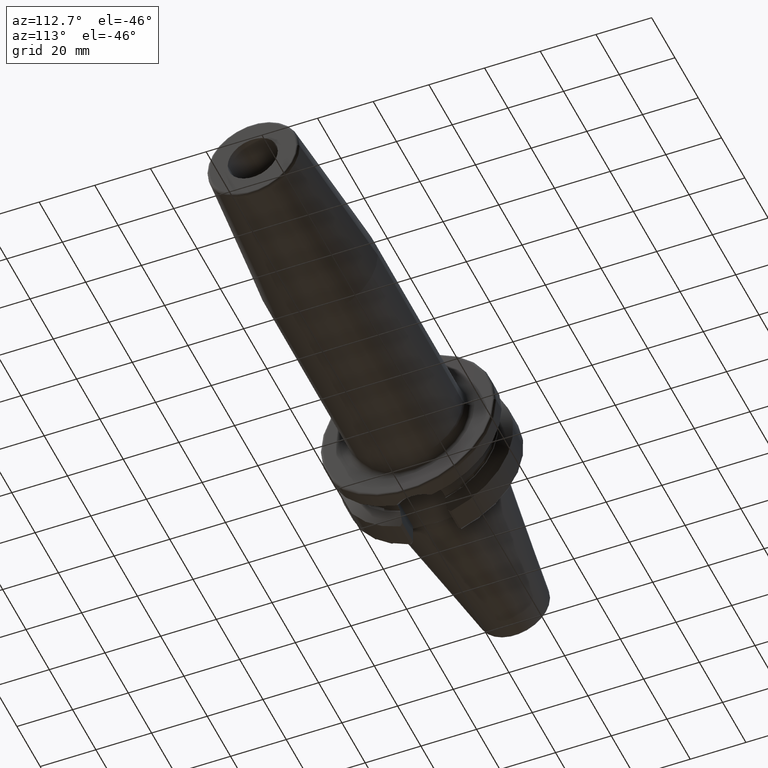
[diagram: clean part render]
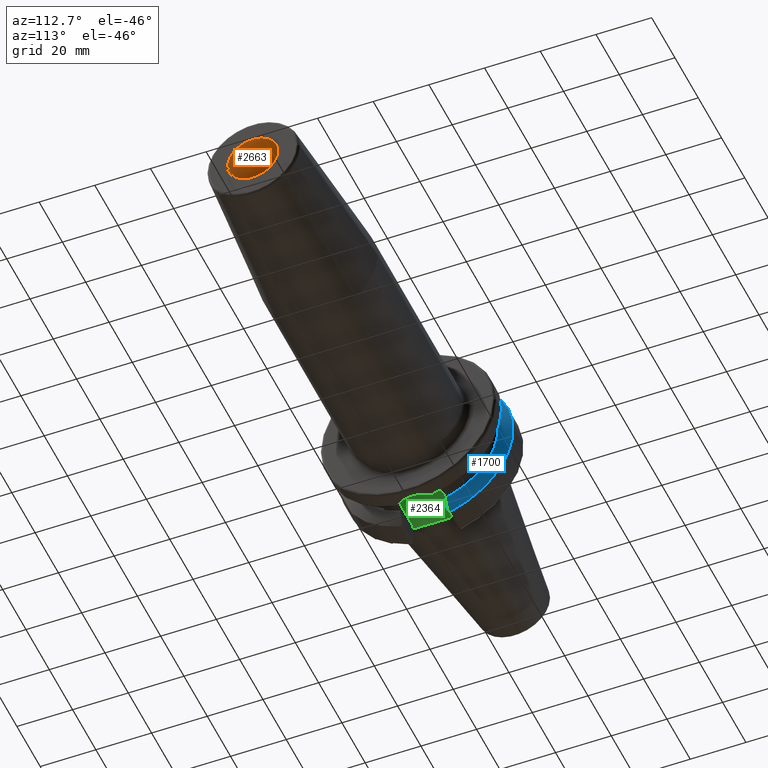
[diagram: same view with three faces highlighted in distinct colors, each labeled with its STEP entity id]
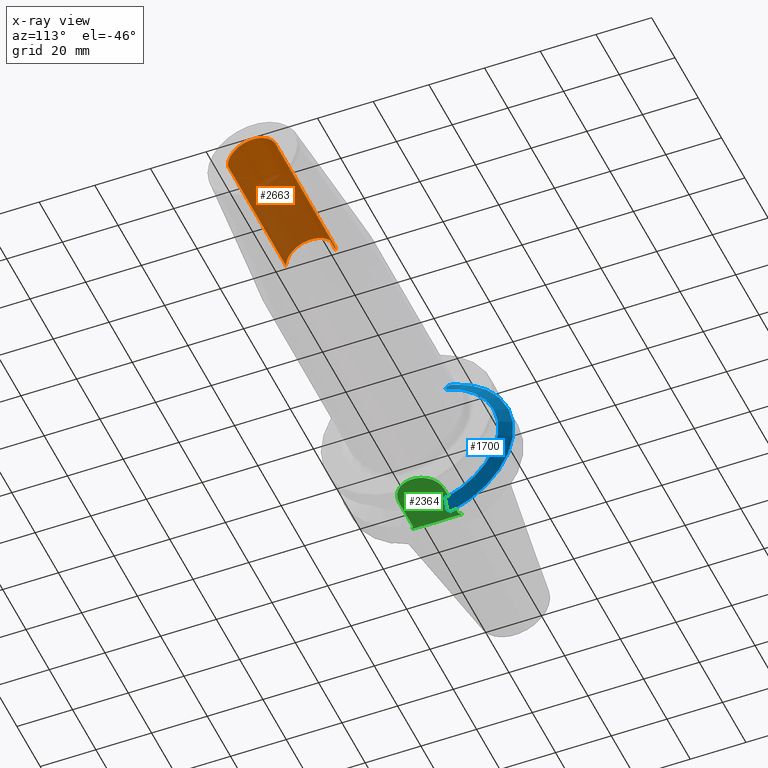
[diagram: x-ray of the same camera — body ghosted, the three highlighted faces saturated]
A machine part, auxiliary view with three faces highlighted in distinct colors.
The next image is the same camera in x-ray (body ghosted, the three faces saturated) — at least one of them is partly hidden behind the body in this view.
Their STEP definitions:

[orange] entity #2663 — the highlighted cylindrical surface (edge-blend (fillet) strip) has radius 9 mm, axis along (1, 0, 0).
#922=CARTESIAN_POINT('',(1.6E2,0.E0,0.E0));
#923=DIRECTION('',(1.E0,0.E0,0.E0));
#924=DIRECTION('',(0.E0,1.E0,0.E0));
#925=AXIS2_PLACEMENT_3D('',#922,#923,#924);
#932=DIRECTION('',(-1.E0,0.E0,0.E0));
#933=VECTOR('',#932,5.E1);
#934=CARTESIAN_POINT('',(1.6E2,9.E0,0.E0));
#935=LINE('',#934,#933);
#936=DIRECTION('',(-1.E0,0.E0,0.E0));
#937=VECTOR('',#936,5.E1);
#938=CARTESIAN_POINT('',(1.6E2,-9.E0,0.E0));
#939=LINE('',#938,#937);
#945=CARTESIAN_POINT('',(1.1E2,0.E0,0.E0));
#946=DIRECTION('',(1.E0,0.E0,0.E0));
#947=DIRECTION('',(0.E0,1.E0,0.E0));
#948=AXIS2_PLACEMENT_3D('',#945,#946,#947);
#1393=CARTESIAN_POINT('',(1.1E2,9.E0,0.E0));
#1394=CARTESIAN_POINT('',(1.1E2,-9.E0,0.E0));
#1395=VERTEX_POINT('',#1393);
#1396=VERTEX_POINT('',#1394);
#1397=CARTESIAN_POINT('',(1.6E2,9.E0,0.E0));
#1398=VERTEX_POINT('',#1397);
#1399=CARTESIAN_POINT('',(1.6E2,-9.E0,0.E0));
#1400=VERTEX_POINT('',#1399);
#2649=CARTESIAN_POINT('',(1.075E2,0.E0,0.E0));
#2650=DIRECTION('',(1.E0,0.E0,0.E0));
#2651=DIRECTION('',(0.E0,-1.E0,0.E0));
#2652=AXIS2_PLACEMENT_3D('',#2649,#2650,#2651);
#2653=CYLINDRICAL_SURFACE('',#2652,9.E0);
#2655=ORIENTED_EDGE('',*,*,#2654,.T.);
#2657=ORIENTED_EDGE('',*,*,#2656,.T.);
#2659=ORIENTED_EDGE('',*,*,#2658,.F.);
#2660=ORIENTED_EDGE('',*,*,#2642,.F.);
#2661=EDGE_LOOP('',(#2655,#2657,#2659,#2660));
#2662=FACE_OUTER_BOUND('',#2661,.F.);
#2663=ADVANCED_FACE('',(#2662),#2653,.F.);
#926=CIRCLE('',#925,9.E0);
#949=CIRCLE('',#948,9.E0);
#2642=EDGE_CURVE('',#1398,#1400,#926,.T.);
#2654=EDGE_CURVE('',#1398,#1395,#935,.T.);
#2656=EDGE_CURVE('',#1395,#1396,#949,.T.);
#2658=EDGE_CURVE('',#1400,#1396,#939,.T.);

[blue] entity #1700 — the highlighted conical surface has half-angle 60 deg.
#155=CARTESIAN_POINT('',(1.212089730171E1,8.095E0,-2.944558475789E1));
#156=CARTESIAN_POINT('',(1.234623272522E1,8.095E0,-2.904081227564E1));
#157=CARTESIAN_POINT('',(1.279052069613E1,8.095E0,-2.824155997645E1));
#158=CARTESIAN_POINT('',(1.343761208926E1,8.095E0,-2.707376738597E1));
#159=CARTESIAN_POINT('',(1.385633764716E1,8.095E0,-2.631545873157E1));
#160=CARTESIAN_POINT('',(1.40625E1,8.095E0,-2.594139336151E1));
#200=CARTESIAN_POINT('',(1.40625E1,0.E0,0.E0));
#201=DIRECTION('',(1.E0,0.E0,0.E0));
#202=DIRECTION('',(0.E0,2.978832194960E-1,-9.546023190537E-1));
#203=AXIS2_PLACEMENT_3D('',#200,#201,#202);
#237=CARTESIAN_POINT('',(1.157272253103E1,0.E0,0.E0));
#238=DIRECTION('',(1.E0,0.E0,0.E0));
#239=DIRECTION('',(0.E0,2.875039130802E-1,-9.577794631143E-1));
#240=AXIS2_PLACEMENT_3D('',#237,#238,#239);
#622=CARTESIAN_POINT('',(1.212089730171E1,8.095E0,-2.944558475789E1));
#623=CARTESIAN_POINT('',(1.203210735485E1,8.251548423090E0,-2.956204177452E1));
#624=CARTESIAN_POINT('',(1.185196062668E1,8.567728822292E0,-2.979724967558E1));
#625=CARTESIAN_POINT('',(1.166666286204E1,8.890070036919E0,-3.003704063260E1));
#626=CARTESIAN_POINT('',(1.157272253103E1,9.052779463114E0,-3.015808084481E1));
#632=CARTESIAN_POINT('',(1.157272253103E1,9.393318983190E0,3.005375541808E1));
#633=CARTESIAN_POINT('',(1.170089151867E1,9.171323784651E0,2.989055444592E1));
#634=CARTESIAN_POINT('',(1.195252831620E1,8.732937755222E0,2.956827258282E1));
#635=CARTESIAN_POINT('',(1.219479613906E1,8.305773148711E0,2.925424020953E1));
#636=CARTESIAN_POINT('',(1.231359829731E1,8.095E0,2.909928918805E1));
#673=CARTESIAN_POINT('',(1.40625E1,8.095E0,2.594139336151E1));
#674=CARTESIAN_POINT('',(1.387619304722E1,8.095E0,2.627943267022E1));
#675=CARTESIAN_POINT('',(1.349822147379E1,8.095E0,2.696405968402E1));
#676=CARTESIAN_POINT('',(1.291532431893E1,8.095E0,2.801651320770E1));
#677=CARTESIAN_POINT('',(1.251595456147E1,8.095E0,2.873548878206E1));
#678=CARTESIAN_POINT('',(1.231359829731E1,8.095E0,2.909928918805E1));
#1218=CARTESIAN_POINT('',(1.40625E1,8.095E0,-2.594139336151E1));
#1219=CARTESIAN_POINT('',(1.40625E1,8.095E0,2.594139336151E1));
#1220=VERTEX_POINT('',#1218);
#1221=VERTEX_POINT('',#1219);
#1326=VERTEX_POINT('',#678);
#1334=VERTEX_POINT('',#155);
#1344=CARTESIAN_POINT('',(1.157272253103E1,9.052779463114E0,-3.015808084481E1));
#1345=CARTESIAN_POINT('',(1.157272253103E1,9.393318983190E0,3.005375541808E1));
#1346=VERTEX_POINT('',#1344);
#1347=VERTEX_POINT('',#1345);
#1683=CARTESIAN_POINT('',(1.281761126552E1,0.E0,0.E0));
#1684=DIRECTION('',(-1.E0,0.E0,0.E0));
#1685=DIRECTION('',(0.E0,1.E0,0.E0));
#1686=AXIS2_PLACEMENT_3D('',#1683,#1684,#1685);
#1687=CONICAL_SURFACE('',#1686,2.933128946210E1,6.E1);
#1689=ORIENTED_EDGE('',*,*,#1688,.F.);
#1691=ORIENTED_EDGE('',*,*,#1690,.F.);
#1692=ORIENTED_EDGE('',*,*,#1634,.T.);
#1693=ORIENTED_EDGE('',*,*,#1657,.T.);
#1695=ORIENTED_EDGE('',*,*,#1694,.T.);
#1697=ORIENTED_EDGE('',*,*,#1696,.F.);
#1698=EDGE_LOOP('',(#1689,#1691,#1692,#1693,#1695,#1697));
#1699=FACE_OUTER_BOUND('',#1698,.F.);
#1700=ADVANCED_FACE('',(#1699),#1687,.T.);
#161=B_SPLINE_CURVE_WITH_KNOTS('',3,(#155,#156,#157,#158,#159,#160),
.UNSPECIFIED.,.F.,.F.,(4,1,1,4),(0.E0,3.333333333333E-1,6.666666666667E-1,1.E0),
.UNSPECIFIED.);
#204=CIRCLE('',#203,2.717507892421E1);
#241=CIRCLE('',#240,3.14875E1);
#627=B_SPLINE_CURVE_WITH_KNOTS('',3,(#622,#623,#624,#625,#626),.UNSPECIFIED.,
.F.,.F.,(4,1,4),(0.E0,5.E-1,1.E0),.UNSPECIFIED.);
#637=B_SPLINE_CURVE_WITH_KNOTS('',3,(#632,#633,#634,#635,#636),.UNSPECIFIED.,
.F.,.F.,(4,1,4),(0.E0,5.E-1,1.E0),.UNSPECIFIED.);
#679=B_SPLINE_CURVE_WITH_KNOTS('',3,(#673,#674,#675,#676,#677,#678),
.UNSPECIFIED.,.F.,.F.,(4,1,1,4),(0.E0,3.333333333333E-1,6.666666666667E-1,1.E0),
.UNSPECIFIED.);
#1634=EDGE_CURVE('',#1334,#1220,#161,.T.);
#1657=EDGE_CURVE('',#1220,#1221,#204,.T.);
#1688=EDGE_CURVE('',#1346,#1347,#241,.T.);
#1690=EDGE_CURVE('',#1334,#1346,#627,.T.);
#1694=EDGE_CURVE('',#1221,#1326,#679,.T.);
#1696=EDGE_CURVE('',#1347,#1326,#637,.T.);

[green] entity #2364 — the highlighted planar face has unit normal (0, 0, 1).
#116=CARTESIAN_POINT('',(2.E0,4.388977671395E0,-2.245E1));
#117=CARTESIAN_POINT('',(2.E0,3.970864393606E0,-2.245E1));
#118=CARTESIAN_POINT('',(1.981114905491E0,3.134790252882E0,-2.245E1));
#119=CARTESIAN_POINT('',(1.935909306664E0,1.881114481695E0,-2.245E1));
#120=CARTESIAN_POINT('',(1.903922826087E0,6.271978198695E-1,-2.245E1));
#121=CARTESIAN_POINT('',(1.903921553157E0,-6.271174199701E-1,-2.245E1));
#122=CARTESIAN_POINT('',(1.935907277484E0,-1.881058975901E0,-2.245E1));
#123=CARTESIAN_POINT('',(1.981114329553E0,-3.134769380598E0,-2.245E1));
#124=CARTESIAN_POINT('',(2.E0,-3.970858027266E0,-2.245E1));
#125=CARTESIAN_POINT('',(2.E0,-4.388977671395E0,-2.245E1));
#147=DIRECTION('',(7.071067811865E-1,-7.071067811865E-1,0.E0));
#148=VECTOR('',#147,1.414213562373E0);
#149=CARTESIAN_POINT('',(2.E0,9.095E0,-2.245E1));
#150=LINE('',#149,#148);
#738=DIRECTION('',(-7.071067811865E-1,-7.071067811865E-1,0.E0));
#739=VECTOR('',#738,1.414213562373E0);
#740=CARTESIAN_POINT('',(3.E0,-8.095E0,-2.245E1));
#741=LINE('',#740,#739);
#742=DIRECTION('',(-1.E0,0.E0,0.E0));
#743=VECTOR('',#742,1.2155E1);
#744=CARTESIAN_POINT('',(1.5155E1,8.095E0,-2.245E1));
#745=LINE('',#744,#743);
#746=DIRECTION('',(0.E0,-1.E0,0.E0));
#747=VECTOR('',#746,4.706022328605E0);
#748=CARTESIAN_POINT('',(2.E0,9.095E0,-2.245E1));
#749=LINE('',#748,#747);
#750=DIRECTION('',(0.E0,-1.E0,0.E0));
#751=VECTOR('',#750,4.706022328605E0);
#752=CARTESIAN_POINT('',(2.E0,-4.388977671395E0,-2.245E1));
#753=LINE('',#752,#751);
#754=DIRECTION('',(1.E0,0.E0,0.E0));
#755=VECTOR('',#754,1.2155E1);
#756=CARTESIAN_POINT('',(3.E0,-8.095E0,-2.245E1));
#757=LINE('',#756,#755);
#758=CARTESIAN_POINT('',(1.5155E1,0.E0,-2.245E1));
#759=DIRECTION('',(0.E0,0.E0,1.E0));
#760=DIRECTION('',(0.E0,-1.E0,0.E0));
#761=AXIS2_PLACEMENT_3D('',#758,#759,#760);
#1316=CARTESIAN_POINT('',(1.5155E1,-8.095E0,-2.245E1));
#1317=CARTESIAN_POINT('',(1.5155E1,8.095E0,-2.245E1));
#1318=VERTEX_POINT('',#1316);
#1319=VERTEX_POINT('',#1317);
#1320=CARTESIAN_POINT('',(2.E0,4.388977671395E0,-2.245E1));
#1321=VERTEX_POINT('',#1320);
#1322=CARTESIAN_POINT('',(2.E0,-4.388977671395E0,-2.245E1));
#1323=VERTEX_POINT('',#1322);
#1369=CARTESIAN_POINT('',(3.E0,8.095E0,-2.245E1));
#1371=VERTEX_POINT('',#1369);
#1373=CARTESIAN_POINT('',(2.E0,9.095E0,-2.245E1));
#1375=VERTEX_POINT('',#1373);
#1379=CARTESIAN_POINT('',(2.E0,-9.095E0,-2.245E1));
#1380=VERTEX_POINT('',#1379);
#1381=CARTESIAN_POINT('',(3.E0,-8.095E0,-2.245E1));
#1383=VERTEX_POINT('',#1381);
#2349=CARTESIAN_POINT('',(0.E0,0.E0,-2.245E1));
#2350=DIRECTION('',(0.E0,0.E0,1.E0));
#2351=DIRECTION('',(1.E0,0.E0,0.E0));
#2352=AXIS2_PLACEMENT_3D('',#2349,#2350,#2351);
#2353=PLANE('',#2352);
#2354=ORIENTED_EDGE('',*,*,#1641,.T.);
#2355=ORIENTED_EDGE('',*,*,#1622,.F.);
#2356=ORIENTED_EDGE('',*,*,#1586,.T.);
#2357=ORIENTED_EDGE('',*,*,#1565,.T.);
#2358=ORIENTED_EDGE('',*,*,#1598,.T.);
#2359=ORIENTED_EDGE('',*,*,#2344,.F.);
#2360=ORIENTED_EDGE('',*,*,#1796,.T.);
#2361=ORIENTED_EDGE('',*,*,#1890,.T.);
#2362=EDGE_LOOP('',(#2354,#2355,#2356,#2357,#2358,#2359,#2360,#2361));
#2363=FACE_OUTER_BOUND('',#2362,.F.);
#2364=ADVANCED_FACE('',(#2363),#2353,.F.);
#126=B_SPLINE_CURVE_WITH_KNOTS('',3,(#116,#117,#118,#119,#120,#121,#122,#123,
#124,#125),.UNSPECIFIED.,.F.,.F.,(4,1,1,1,1,1,1,4),(0.E0,1.428571428571E-1,
2.857142857143E-1,4.285714285714E-1,5.714285714286E-1,7.142857142857E-1,
8.571428571429E-1,1.E0),.UNSPECIFIED.);
#762=CIRCLE('',#761,8.095E0);
#1565=EDGE_CURVE('',#1321,#1323,#126,.T.);
#1586=EDGE_CURVE('',#1375,#1321,#749,.T.);
#1598=EDGE_CURVE('',#1323,#1380,#753,.T.);
#1622=EDGE_CURVE('',#1375,#1371,#150,.T.);
#1641=EDGE_CURVE('',#1319,#1371,#745,.T.);
#1796=EDGE_CURVE('',#1383,#1318,#757,.T.);
#1890=EDGE_CURVE('',#1318,#1319,#762,.T.);
#2344=EDGE_CURVE('',#1383,#1380,#741,.T.);